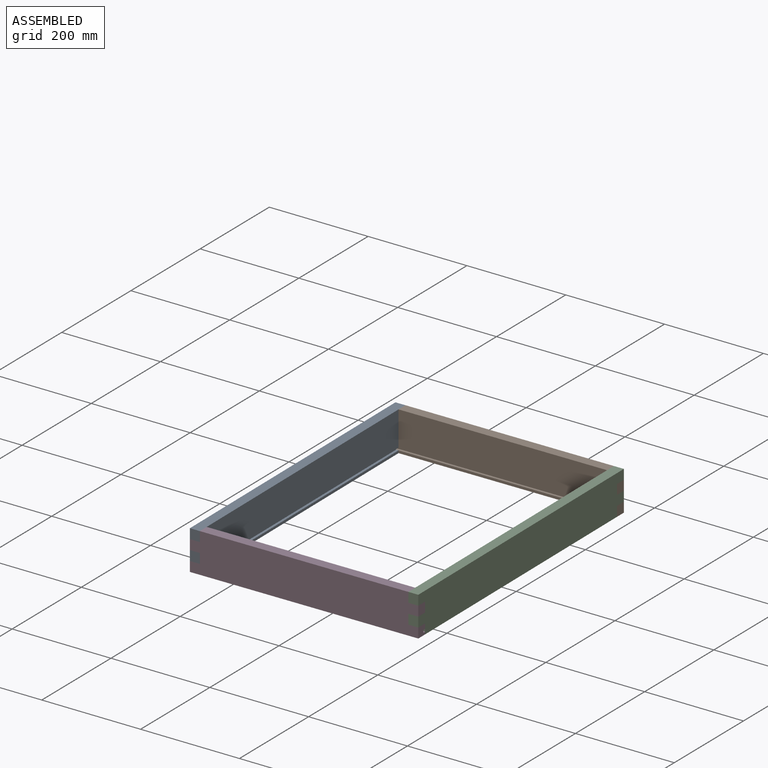
[diagram: assembled view]
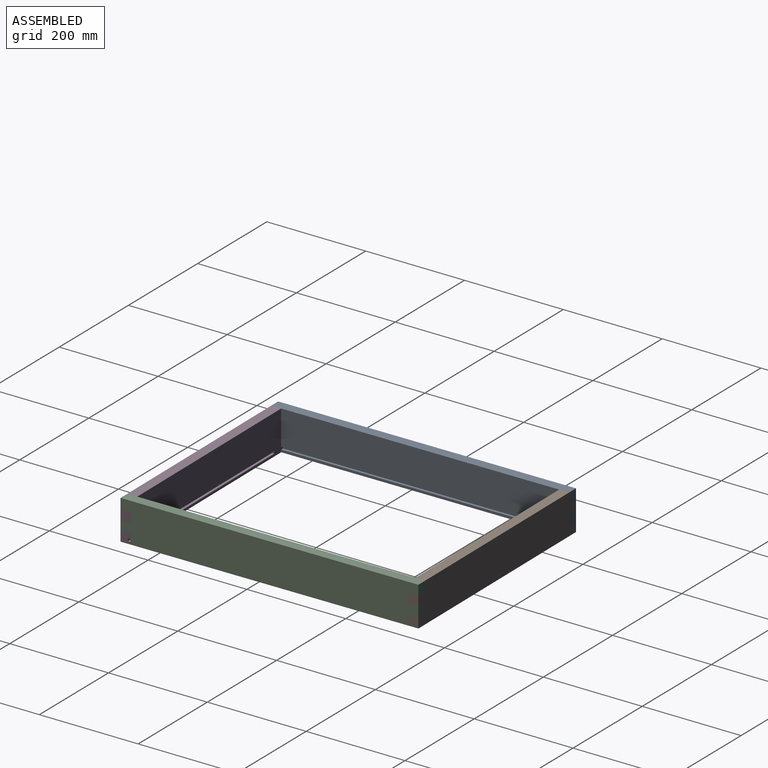
[diagram: assembled view, second angle]
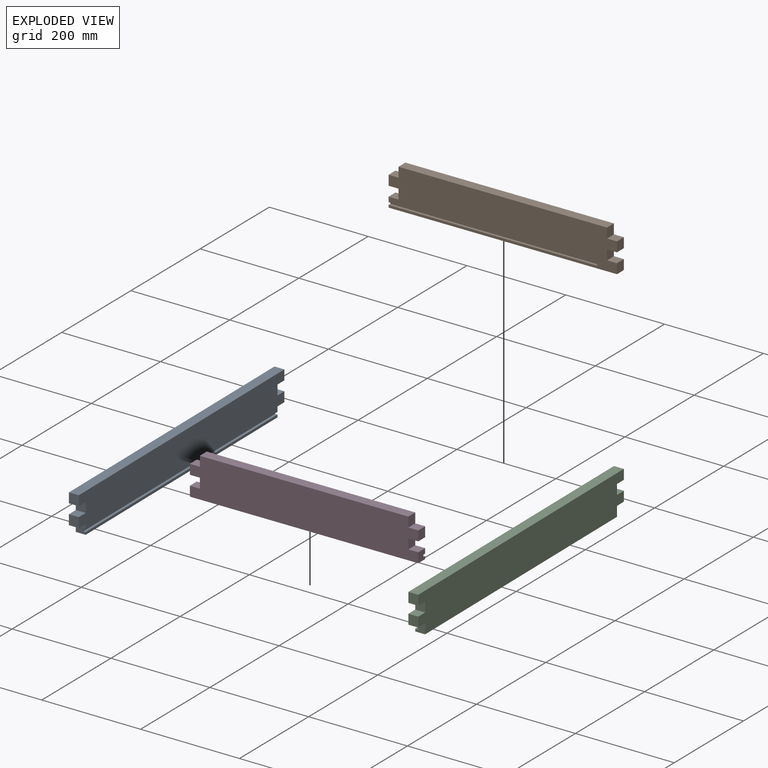
[diagram: exploded view]
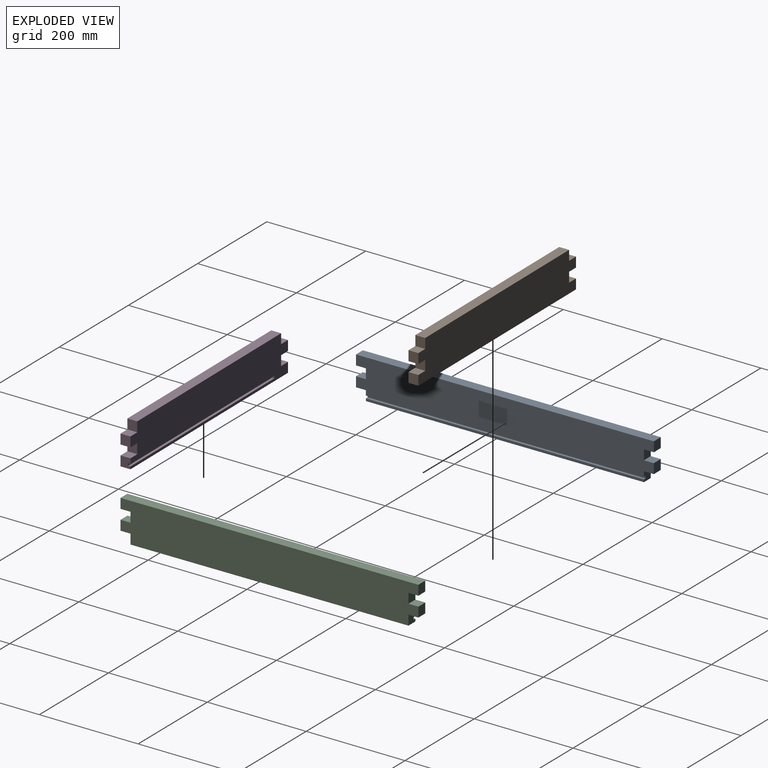
[diagram: exploded view, second angle]
ASSEMBLY  parts=4 mates=3
PART A: 22 faces, bbox 600x20x80 mm
  f0: plane 560x5mm, normal (0,1,0), area 2800mm2, adj f6,f7,f8,f21
  f1: plane 20x20mm, normal (0,0,1), area 400mm2, adj f2,f16,f17,f18
  f2: plane 20x20mm, normal (1,0,0), area 400mm2, adj f1,f3,f17,f18
  f3: plane 20x20mm, normal (0,0,-1), area 400mm2, adj f2,f4,f17,f18
  f4: plane 20x20mm, normal (1,0,0), area 400mm2, adj f3,f5,f17,f18
  f5: plane 20x20mm, normal (0,0,1), area 400mm2, adj f4,f6,f17,f18
  f6: plane 20x20mm, normal (1,0,0), area 375mm2, adj f0,f5,f7,f17,f18,f19,f20,f21
  f7: plane 560x20mm, normal (0,0,1), area 11200mm2, adj f0,f6,f8,f17
  f8: plane 20x20mm, normal (-1,0,0), area 375mm2, adj f0,f7,f9,f17,f18,f19,f20,f21
  f9: plane 20x20mm, normal (0,0,1), area 400mm2, adj f8,f10,f17,f18
  f10: plane 20x20mm, normal (-1,0,0), area 400mm2, adj f9,f11,f17,f18
  f11: plane 20x20mm, normal (0,0,-1), area 400mm2, adj f10,f12,f17,f18
  f12: plane 20x20mm, normal (-1,0,0), area 400mm2, adj f11,f13,f17,f18
  f13: plane 20x20mm, normal (0,0,1), area 400mm2, adj f12,f14,f17,f18
  f14: plane 20x20mm, normal (-1,0,0), area 400mm2, adj f13,f15,f17,f18
  f15: plane 600x20mm, normal (0,0,-1), area 12000mm2, adj f14,f16,f17,f18
  f16: plane 20x20mm, normal (1,0,0), area 400mm2, adj f1,f15,f17,f18
  f17: plane 600x80mm, normal (0,-1,0), area 46400mm2, adj f1,f2,f3,f4,f5,f6,f7,f8
  f18: plane 600x70mm, normal (0,1,0), area 40800mm2, adj f1,f2,f3,f4,f5,f6,f8,f9
  f19: plane 560x5mm, normal (0,1,0), area 2800mm2, adj f6,f8,f20,f21
  f20: plane 560x5mm, normal (0,0,1), area 2800mm2, adj f6,f8,f18,f19
  f21: plane 560x5mm, normal (0,0,-1), area 2800mm2, adj f0,f6,f8,f19
PART B: 22 faces, bbox 460x20x80 mm
  f0: plane 20x20mm, normal (1,0,0), area 375mm2, adj f1,f15,f16,f17,f18,f19,f20
  f1: plane 20x20mm, normal (0,0,1), area 400mm2, adj f0,f2,f16,f17
  f2: plane 20x20mm, normal (1,0,0), area 400mm2, adj f1,f3,f16,f17
  f3: plane 20x20mm, normal (0,0,-1), area 400mm2, adj f2,f4,f16,f17
  f4: plane 20x20mm, normal (1,0,0), area 400mm2, adj f3,f5,f16,f17
  f5: plane 20x20mm, normal (0,0,1), area 400mm2, adj f4,f6,f16,f17
  f6: plane 20x20mm, normal (1,0,0), area 400mm2, adj f5,f7,f16,f17
  f7: plane 420x20mm, normal (0,0,1), area 8400mm2, adj f6,f8,f16,f17
  f8: plane 20x20mm, normal (-1,0,0), area 400mm2, adj f7,f9,f16,f17
  f9: plane 20x20mm, normal (0,0,1), area 400mm2, adj f8,f10,f16,f17
  f10: plane 20x20mm, normal (-1,0,0), area 400mm2, adj f9,f11,f16,f17
  f11: plane 20x20mm, normal (0,0,-1), area 400mm2, adj f10,f12,f16,f17
  f12: plane 20x20mm, normal (-1,0,0), area 400mm2, adj f11,f13,f16,f17
  f13: plane 20x20mm, normal (0,0,1), area 400mm2, adj f12,f14,f16,f17
  f14: plane 20x20mm, normal (-1,0,0), area 400mm2, adj f13,f15,f16,f17
  f15: plane 460x20mm, normal (0,0,-1), area 9200mm2, adj f0,f14,f16,f17
  f16: plane 460x80mm, normal (0,-1,0), area 35200mm2, adj f0,f1,f2,f3,f4,f5,f6,f7
  f17: plane 460x80mm, normal (0,1,0), area 33100mm2, adj f0,f1,f2,f3,f4,f5,f6,f7
  f18: plane 420x5mm, normal (0,1,0), area 2100mm2, adj f0,f19,f20,f21
  f19: plane 420x5mm, normal (0,0,1), area 2100mm2, adj f0,f17,f18,f21
  f20: plane 420x5mm, normal (0,0,-1), area 2100mm2, adj f0,f17,f18,f21
  f21: plane 5x5mm, normal (1,0,0), area 25mm2, adj f17,f18,f19,f20
PART C: same geometry as A
PART D: same geometry as B
PLACE A rot(axis=(0.7,0.71,0),180deg) t=(547.26,-667.7,18.23)mm
PLACE B rot(axis=(0,0,-1),179.6deg) t=(983.25,-84.69,-61.77)mm
PLACE C rot(axis=(0.71,-0.7,0),180deg) t=(963.12,-64.82,18.23)mm
PLACE D rot(axis=(0,0,1),0.4deg) t=(527.12,-647.84,-61.77)mm
MATE fastened C.f18 <-> B.f8  axis (-1,-0.01,0) through (963.12,-64.82,18.23)mm
MATE fastened A.f16 <-> B.f16  axis (-0.01,1,0) through (543.13,-67.71,18.23)mm
MATE fastened D.f10 <-> A.f17  axis (-1,-0.01,0) through (527.12,-647.84,-1.77)mm
